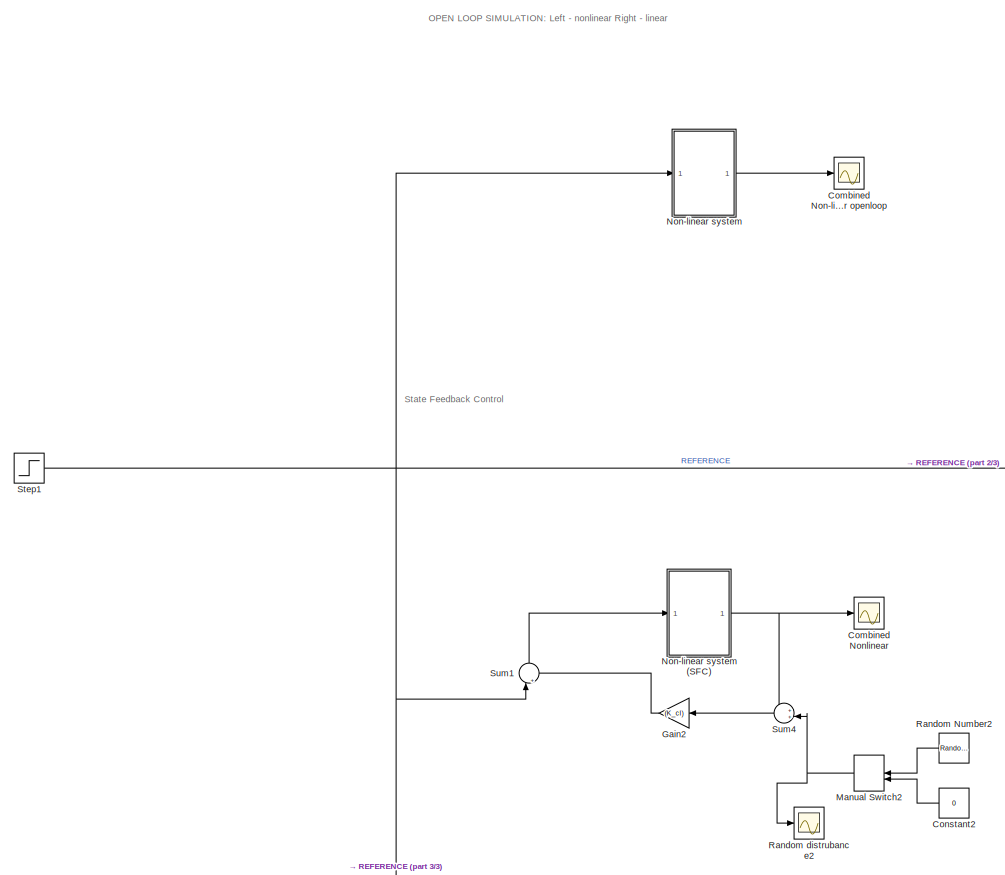
[diagram: root canvas - part 1/3, top left region]
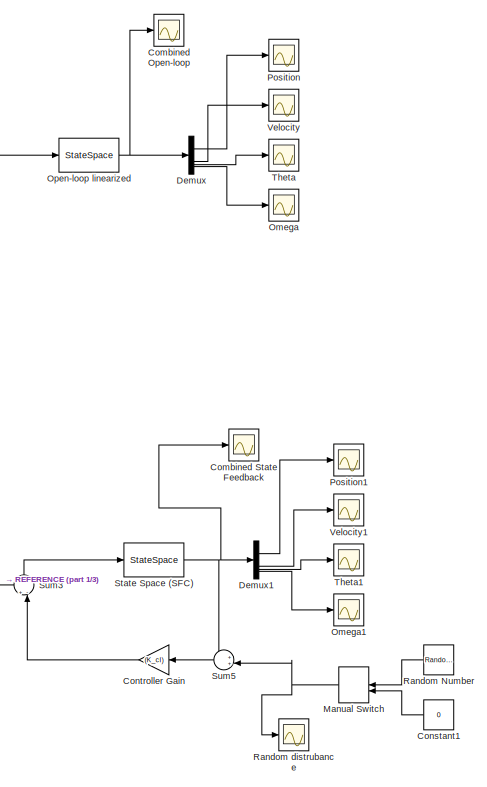
[diagram: root canvas - part 2/3, top right region]
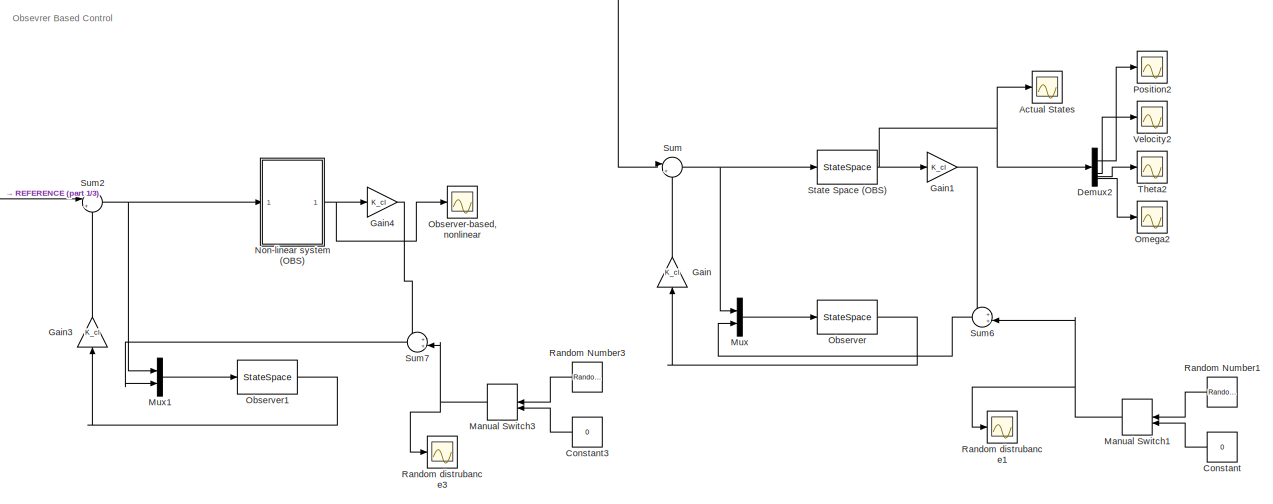
[diagram: root canvas - part 3/3, full width, bottom band]
MODEL slx_dab11f728cc3
KIND model
CONFIG AbsTol = auto
CONFIG EnableMultiTasking = off
CONFIG FixedStep = auto
CONFIG MaxStep = 0.2
CONFIG MinStep = auto
CONFIG RelTol = 1e-3
CONFIG SampleTimeConstraint = Unconstrained
CONFIG SolverName = ode45
CONFIG StartTime = 0.0
CONFIG StopTime = 5
BLOCK [Scope] Actual States
  Floating = off
  NumInputPorts = 1
  ScopeSpecificationString = Simulink.scopes.TimeScopeBlockCfg('CurrentConfiguration', extmgr.ConfigurationSet(extmgr.Configuration('Core','General UI',true),extmgr.Configuration('Core','Source UI',true),extmgr.Configuration('Sources','WiredSimulink',true,'DataLoggingVariableName','ScopeData2'),extmgr.Configuration('Visuals','Time Domain',true,'SerializedDisplays',{struct('MinYLimReal','-284.9145','MaxYLimReal','100.47909','Y...<+1461ch>
BLOCK [Scope] Combined Non-linear openloop
  Floating = off
  NumInputPorts = 1
  ScopeSpecificationString = Simulink.scopes.TimeScopeBlockCfg('CurrentConfiguration', extmgr.ConfigurationSet(extmgr.Configuration('Core','General UI',true),extmgr.Configuration('Core','Source UI',true),extmgr.Configuration('Sources','WiredSimulink',true,'DataLoggingVariableName','ScopeData13'),extmgr.Configuration('Visuals','Time Domain',true,'SerializedDisplays',{struct('MinYLimReal','-91785.47375','MaxYLimReal','13589.627...<+1476ch>
BLOCK [Scope] Combined Nonlinear
  Floating = off
  NumInputPorts = 1
  ScopeSpecificationString = Simulink.scopes.TimeScopeBlockCfg('CurrentConfiguration', extmgr.ConfigurationSet(extmgr.Configuration('Core','General UI',true),extmgr.Configuration('Core','Source UI',true),extmgr.Configuration('Sources','WiredSimulink',true,'DataLoggingVariableName','ScopeData8'),extmgr.Configuration('Visuals','Time Domain',true,'SerializedDisplays',{struct('MinYLimReal','-166.23006','MaxYLimReal','56.84395','Y...<+1457ch>
BLOCK [Scope] Combined Open-loop
  Floating = off
  NumInputPorts = 1
  ScopeSpecificationString = Simulink.scopes.TimeScopeBlockCfg('CurrentConfiguration', extmgr.ConfigurationSet(extmgr.Configuration('Core','General UI',true),extmgr.Configuration('Core','Source UI',true),extmgr.Configuration('Sources','WiredSimulink',true,'DataLoggingVariableName','ScopeData15'),extmgr.Configuration('Visuals','Time Domain',true,'SerializedDisplays',{struct('MinYLimReal','-1482712134012761315355942947245124727...<+1972ch>
BLOCK [Scope] Combined State Feedback
  Floating = off
  NumInputPorts = 1
  ScopeSpecificationString = Simulink.scopes.TimeScopeBlockCfg('CurrentConfiguration', extmgr.ConfigurationSet(extmgr.Configuration('Core','General UI',true),extmgr.Configuration('Core','Source UI',true),extmgr.Configuration('Sources','WiredSimulink',true,'DataLoggingVariableName','ScopeData16'),extmgr.Configuration('Visuals','Time Domain',true,'SerializedDisplays',{struct('MinYLimReal','-343.47586','MaxYLimReal','135.39238',...<+1599ch>
BLOCK [Constant] Constant
  Value = 0
BLOCK [Constant] Constant1
  Value = 0
BLOCK [Constant] Constant2
  Value = 0
BLOCK [Constant] Constant3
  Value = 0
BLOCK [Gain] Controller Gain
  Gain = (K_cl)
  Multiplication = Matrix(K*u)
BLOCK [Demux] Demux
BLOCK [Demux] Demux1
BLOCK [Demux] Demux2
BLOCK [Gain] Gain
  Gain = K_cl
  Multiplication = Matrix(K*u)
  NameLocation = right
BLOCK [Gain] Gain1
  Gain = K_cl
BLOCK [Gain] Gain2
  Gain = (K_cl)
  Multiplication = Matrix(K*u)
BLOCK [Gain] Gain3
  Gain = K_cl
  Multiplication = Matrix(K*u)
  NameLocation = right
BLOCK [Gain] Gain4
  Gain = K_cl
BLOCK [ManualSwitch] Manual Switch
BLOCK [ManualSwitch] Manual Switch1
BLOCK [ManualSwitch] Manual Switch2
  CurrentSetting = 0
BLOCK [ManualSwitch] Manual Switch3
BLOCK [Mux] Mux
  DisplayOption = bar
  Inputs = 2
BLOCK [Mux] Mux1
  DisplayOption = bar
  Inputs = 2
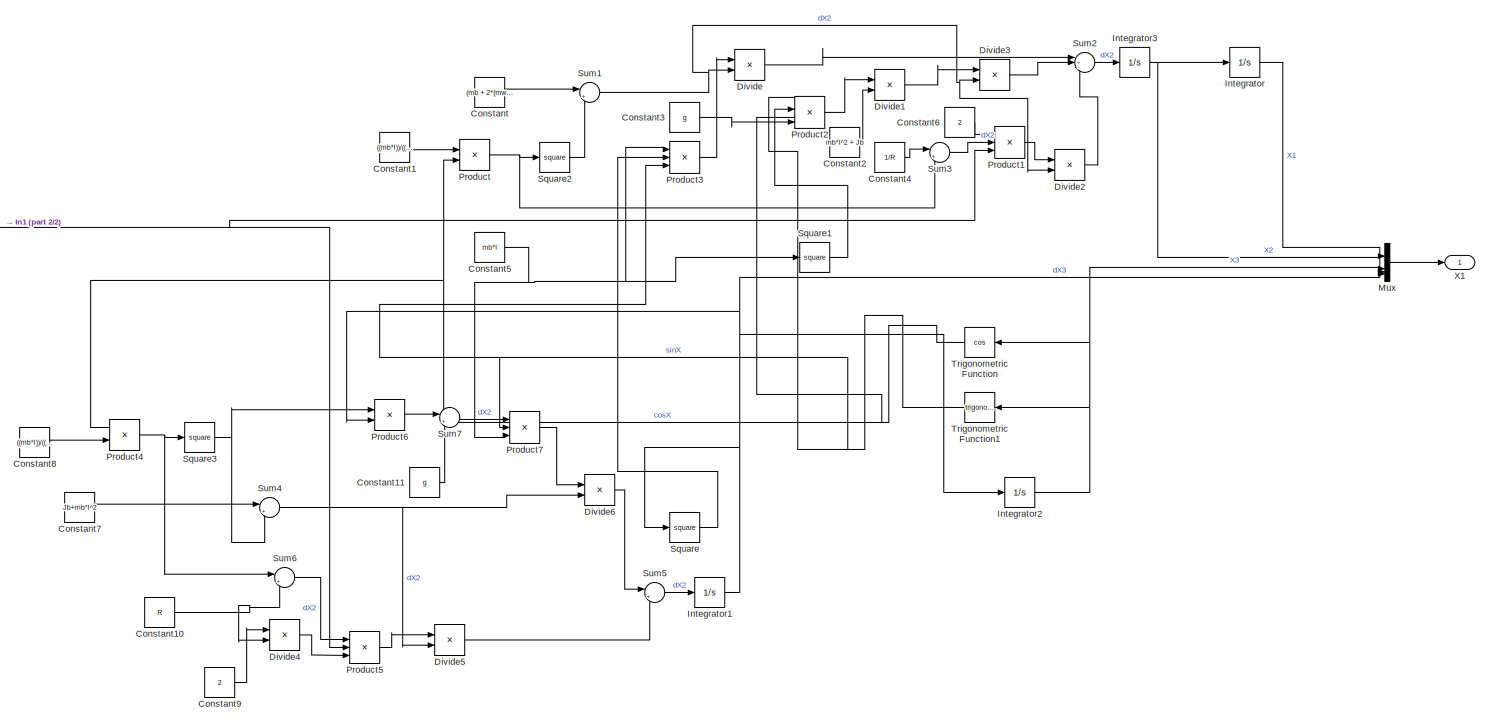
[diagram: Non-linear system - part 1/2, most of the canvas]
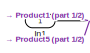
[diagram: Non-linear system - part 2/2, middle left region]
BLOCK [SubSystem] Non-linear system
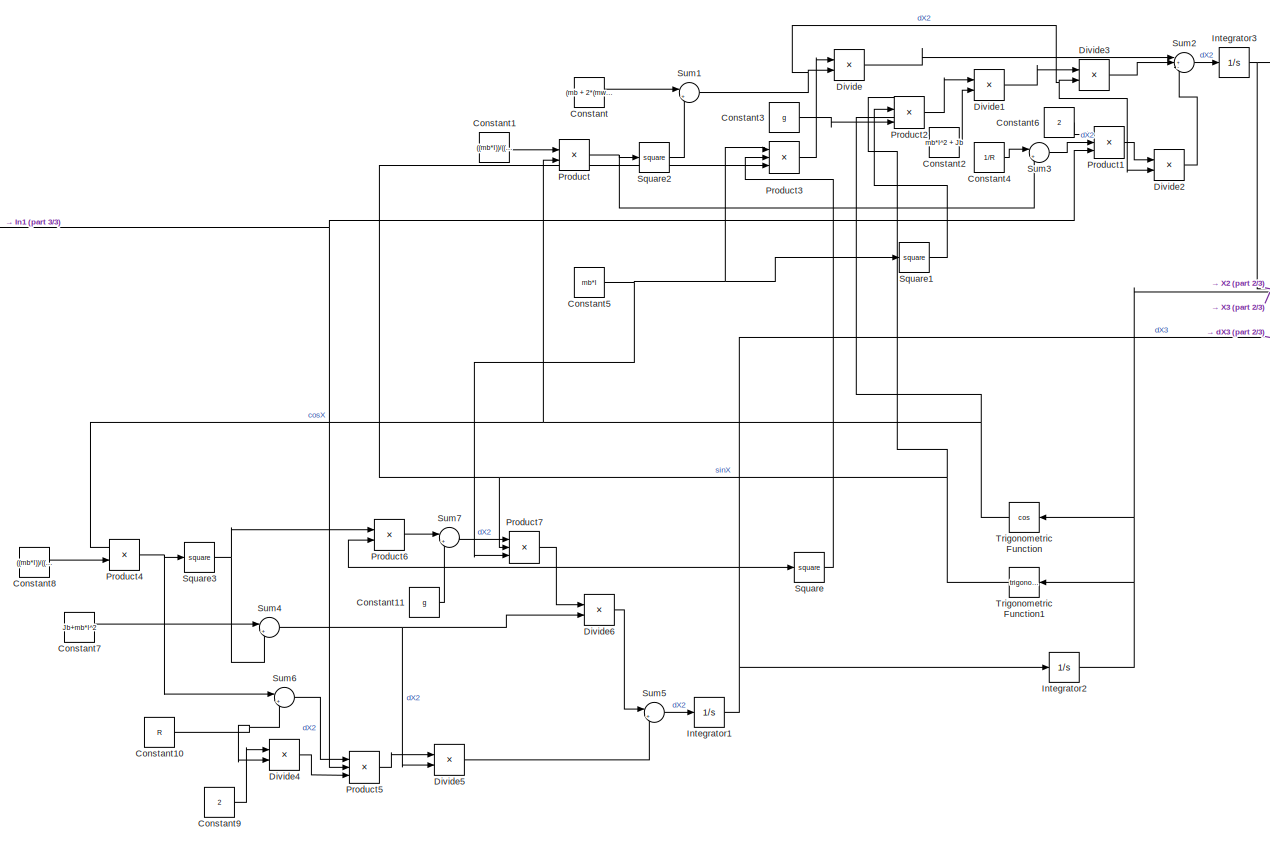
[diagram: Non-linear system (OBS) - part 1/3, center side, full height]
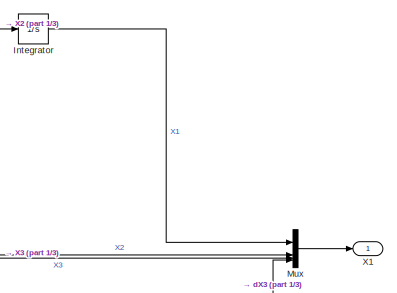
[diagram: Non-linear system (OBS) - part 2/3, top right region]
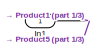
[diagram: Non-linear system (OBS) - part 3/3, top left region]
BLOCK [SubSystem] Non-linear system (OBS)
BLOCK [Constant] Non-linear system (OBS)/Constant
  Value = (mb + 2*(mw + Jw/R^2))
BLOCK [Constant] Non-linear system (OBS)/Constant1
  Value = ((mb*l))/((mb*l^2)+Jb)
BLOCK [Constant] Non-linear system (OBS)/Constant10
  Value = R
BLOCK [Constant] Non-linear system (OBS)/Constant11
  Value = g
BLOCK [Constant] Non-linear system (OBS)/Constant2
  Value = mb*l^2 + Jb
BLOCK [Constant] Non-linear system (OBS)/Constant3
  Value = g
BLOCK [Constant] Non-linear system (OBS)/Constant4
  Value = 1/R
BLOCK [Constant] Non-linear system (OBS)/Constant5
  Value = mb*l
BLOCK [Constant] Non-linear system (OBS)/Constant6
  Value = 2
BLOCK [Constant] Non-linear system (OBS)/Constant7
  Value = Jb+mb*l^2
BLOCK [Constant] Non-linear system (OBS)/Constant8
  Value = ((mb*l))/((mb+2*(mw+(Jb/R^2))))
BLOCK [Constant] Non-linear system (OBS)/Constant9
  Value = 2
BLOCK [Product] Non-linear system (OBS)/Divide
  Inputs = */
BLOCK [Product] Non-linear system (OBS)/Divide1
  Inputs = */
BLOCK [Product] Non-linear system (OBS)/Divide2
  Inputs = */
BLOCK [Product] Non-linear system (OBS)/Divide3
  Inputs = */
BLOCK [Product] Non-linear system (OBS)/Divide4
  Inputs = */
BLOCK [Product] Non-linear system (OBS)/Divide5
  Inputs = */
BLOCK [Product] Non-linear system (OBS)/Divide6
  Inputs = */
BLOCK [Inport] Non-linear system (OBS)/In1
BLOCK [Integrator] Non-linear system (OBS)/Integrator
  ContinuousStateAttributes = 'x1'
BLOCK [Integrator] Non-linear system (OBS)/Integrator1
BLOCK [Integrator] Non-linear system (OBS)/Integrator2
BLOCK [Integrator] Non-linear system (OBS)/Integrator3
BLOCK [Mux] Non-linear system (OBS)/Mux
  DisplayOption = bar
BLOCK [Product] Non-linear system (OBS)/Product
BLOCK [Product] Non-linear system (OBS)/Product1
  Inputs = 3
BLOCK [Product] Non-linear system (OBS)/Product2
  Inputs = 4
BLOCK [Product] Non-linear system (OBS)/Product3
  Inputs = 3
BLOCK [Product] Non-linear system (OBS)/Product4
BLOCK [Product] Non-linear system (OBS)/Product5
  Inputs = 3
BLOCK [Product] Non-linear system (OBS)/Product6
BLOCK [Product] Non-linear system (OBS)/Product7
  Inputs = 3
BLOCK [Math] Non-linear system (OBS)/Square
  Operator = square
BLOCK [Math] Non-linear system (OBS)/Square1
  Operator = square
BLOCK [Math] Non-linear system (OBS)/Square2
  Operator = square
BLOCK [Math] Non-linear system (OBS)/Square3
  Operator = square
BLOCK [Sum] Non-linear system (OBS)/Sum1
  Inputs = |+-
BLOCK [Sum] Non-linear system (OBS)/Sum2
  Inputs = |+-+
BLOCK [Sum] Non-linear system (OBS)/Sum3
  Inputs = |++
BLOCK [Sum] Non-linear system (OBS)/Sum4
  Inputs = |+-
BLOCK [Sum] Non-linear system (OBS)/Sum5
  Inputs = |+-
BLOCK [Sum] Non-linear system (OBS)/Sum6
  Inputs = |++
BLOCK [Sum] Non-linear system (OBS)/Sum7
  Inputs = |++
BLOCK [Trigonometry] Non-linear system (OBS)/Trigonometric Function
  Operator = cos
BLOCK [Trigonometry] Non-linear system (OBS)/Trigonometric Function1
BLOCK [Outport] Non-linear system (OBS)/X1
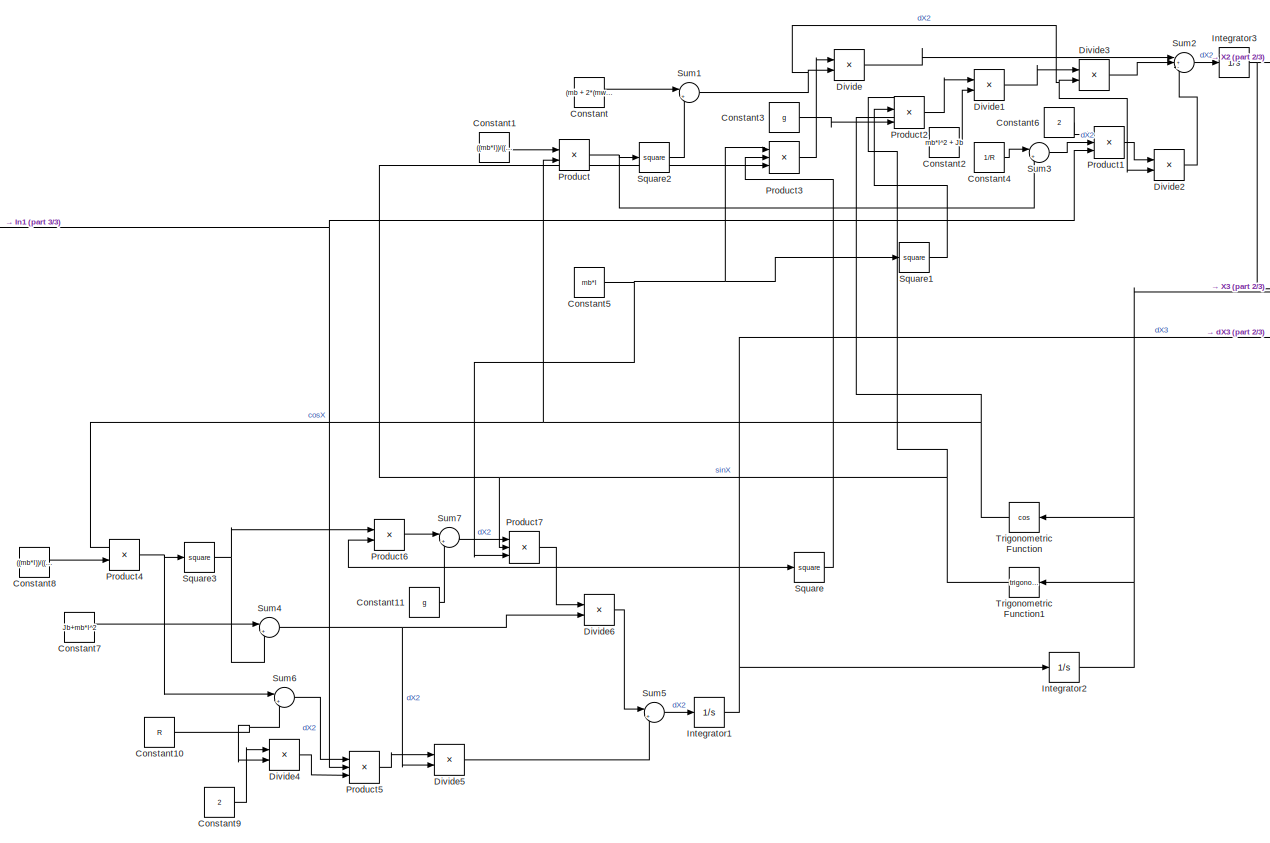
[diagram: Non-linear system (SFC) - part 1/3, center side, full height]
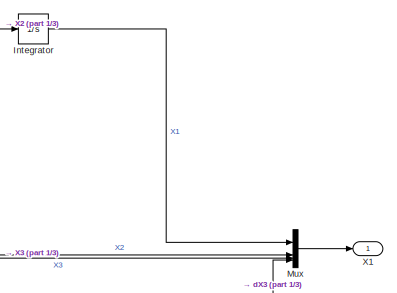
[diagram: Non-linear system (SFC) - part 2/3, top right region]
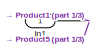
[diagram: Non-linear system (SFC) - part 3/3, top left region]
BLOCK [SubSystem] Non-linear system (SFC)
BLOCK [Constant] Non-linear system (SFC)/Constant
  Value = (mb + 2*(mw + Jw/R^2))
BLOCK [Constant] Non-linear system (SFC)/Constant1
  Value = ((mb*l))/((mb*l^2)+Jb)
BLOCK [Constant] Non-linear system (SFC)/Constant10
  Value = R
BLOCK [Constant] Non-linear system (SFC)/Constant11
  Value = g
BLOCK [Constant] Non-linear system (SFC)/Constant2
  Value = mb*l^2 + Jb
BLOCK [Constant] Non-linear system (SFC)/Constant3
  Value = g
BLOCK [Constant] Non-linear system (SFC)/Constant4
  Value = 1/R
BLOCK [Constant] Non-linear system (SFC)/Constant5
  Value = mb*l
BLOCK [Constant] Non-linear system (SFC)/Constant6
  Value = 2
BLOCK [Constant] Non-linear system (SFC)/Constant7
  Value = Jb+mb*l^2
BLOCK [Constant] Non-linear system (SFC)/Constant8
  Value = ((mb*l))/((mb+2*(mw+(Jb/R^2))))
BLOCK [Constant] Non-linear system (SFC)/Constant9
  Value = 2
BLOCK [Product] Non-linear system (SFC)/Divide
  Inputs = */
BLOCK [Product] Non-linear system (SFC)/Divide1
  Inputs = */
BLOCK [Product] Non-linear system (SFC)/Divide2
  Inputs = */
BLOCK [Product] Non-linear system (SFC)/Divide3
  Inputs = */
BLOCK [Product] Non-linear system (SFC)/Divide4
  Inputs = */
BLOCK [Product] Non-linear system (SFC)/Divide5
  Inputs = */
BLOCK [Product] Non-linear system (SFC)/Divide6
  Inputs = */
BLOCK [Inport] Non-linear system (SFC)/In1
BLOCK [Integrator] Non-linear system (SFC)/Integrator
  ContinuousStateAttributes = 'x1'
BLOCK [Integrator] Non-linear system (SFC)/Integrator1
BLOCK [Integrator] Non-linear system (SFC)/Integrator2
BLOCK [Integrator] Non-linear system (SFC)/Integrator3
BLOCK [Mux] Non-linear system (SFC)/Mux
  DisplayOption = bar
BLOCK [Product] Non-linear system (SFC)/Product
BLOCK [Product] Non-linear system (SFC)/Product1
  Inputs = 3
BLOCK [Product] Non-linear system (SFC)/Product2
  Inputs = 4
BLOCK [Product] Non-linear system (SFC)/Product3
  Inputs = 3
BLOCK [Product] Non-linear system (SFC)/Product4
BLOCK [Product] Non-linear system (SFC)/Product5
  Inputs = 3
BLOCK [Product] Non-linear system (SFC)/Product6
BLOCK [Product] Non-linear system (SFC)/Product7
  Inputs = 3
BLOCK [Math] Non-linear system (SFC)/Square
  Operator = square
BLOCK [Math] Non-linear system (SFC)/Square1
  Operator = square
BLOCK [Math] Non-linear system (SFC)/Square2
  Operator = square
BLOCK [Math] Non-linear system (SFC)/Square3
  Operator = square
BLOCK [Sum] Non-linear system (SFC)/Sum1
  Inputs = |+-
BLOCK [Sum] Non-linear system (SFC)/Sum2
  Inputs = |+-+
BLOCK [Sum] Non-linear system (SFC)/Sum3
  Inputs = |++
BLOCK [Sum] Non-linear system (SFC)/Sum4
  Inputs = |+-
BLOCK [Sum] Non-linear system (SFC)/Sum5
  Inputs = |+-
BLOCK [Sum] Non-linear system (SFC)/Sum6
  Inputs = |++
BLOCK [Sum] Non-linear system (SFC)/Sum7
  Inputs = |++
BLOCK [Trigonometry] Non-linear system (SFC)/Trigonometric Function
  Operator = cos
BLOCK [Trigonometry] Non-linear system (SFC)/Trigonometric Function1
BLOCK [Outport] Non-linear system (SFC)/X1
BLOCK [Constant] Non-linear system/Constant
  Value = (mb + 2*(mw + Jw/R^2))
BLOCK [Constant] Non-linear system/Constant1
  Value = ((mb*l))/((mb*l^2)+Jb)
BLOCK [Constant] Non-linear system/Constant10
  Value = R
BLOCK [Constant] Non-linear system/Constant11
  Value = g
BLOCK [Constant] Non-linear system/Constant2
  Value = mb*l^2 + Jb
BLOCK [Constant] Non-linear system/Constant3
  Value = g
BLOCK [Constant] Non-linear system/Constant4
  Value = 1/R
BLOCK [Constant] Non-linear system/Constant5
  Value = mb*l
BLOCK [Constant] Non-linear system/Constant6
  Value = 2
BLOCK [Constant] Non-linear system/Constant7
  Value = Jb+mb*l^2
BLOCK [Constant] Non-linear system/Constant8
  Value = ((mb*l))/((mb+2*(mw+(Jb/R^2))))
BLOCK [Constant] Non-linear system/Constant9
  Value = 2
BLOCK [Product] Non-linear system/Divide
  Inputs = */
BLOCK [Product] Non-linear system/Divide1
  Inputs = */
BLOCK [Product] Non-linear system/Divide2
  Inputs = */
BLOCK [Product] Non-linear system/Divide3
  Inputs = */
BLOCK [Product] Non-linear system/Divide4
  Inputs = */
BLOCK [Product] Non-linear system/Divide5
  Inputs = */
BLOCK [Product] Non-linear system/Divide6
  Inputs = */
BLOCK [Inport] Non-linear system/In1
BLOCK [Integrator] Non-linear system/Integrator
  ContinuousStateAttributes = 'x1'
BLOCK [Integrator] Non-linear system/Integrator1
BLOCK [Integrator] Non-linear system/Integrator2
BLOCK [Integrator] Non-linear system/Integrator3
BLOCK [Mux] Non-linear system/Mux
  DisplayOption = bar
BLOCK [Product] Non-linear system/Product
BLOCK [Product] Non-linear system/Product1
  Inputs = 3
BLOCK [Product] Non-linear system/Product2
  Inputs = 4
BLOCK [Product] Non-linear system/Product3
  Inputs = 3
BLOCK [Product] Non-linear system/Product4
BLOCK [Product] Non-linear system/Product5
  Inputs = 3
BLOCK [Product] Non-linear system/Product6
BLOCK [Product] Non-linear system/Product7
  Inputs = 3
BLOCK [Math] Non-linear system/Square
  Operator = square
BLOCK [Math] Non-linear system/Square1
  Operator = square
BLOCK [Math] Non-linear system/Square2
  Operator = square
BLOCK [Math] Non-linear system/Square3
  Operator = square
BLOCK [Sum] Non-linear system/Sum1
  Inputs = |+-
BLOCK [Sum] Non-linear system/Sum2
  Inputs = |+-+
BLOCK [Sum] Non-linear system/Sum3
  Inputs = |++
BLOCK [Sum] Non-linear system/Sum4
  Inputs = |+-
BLOCK [Sum] Non-linear system/Sum5
  Inputs = |+-
BLOCK [Sum] Non-linear system/Sum6
  Inputs = |++
BLOCK [Sum] Non-linear system/Sum7
  Inputs = |++
BLOCK [Trigonometry] Non-linear system/Trigonometric Function
  Operator = cos
BLOCK [Trigonometry] Non-linear system/Trigonometric Function1
BLOCK [Outport] Non-linear system/X1
BLOCK [StateSpace] Observer
  A = A_obs
  B = B_obs
  C = C_obs
  D = D_obs
  InitialCondition = 0
BLOCK [Scope] Observer-based, nonlinear
  Floating = off
  NumInputPorts = 1
  ScopeSpecificationString = Simulink.scopes.TimeScopeBlockCfg('CurrentConfiguration', extmgr.ConfigurationSet(extmgr.Configuration('Core','General UI',true),extmgr.Configuration('Core','Source UI',true),extmgr.Configuration('Sources','WiredSimulink',true,'DataLoggingVariableName','ScopeData14'),extmgr.Configuration('Visuals','Time Domain',true,'SerializedDisplays',{struct('MinYLimReal','-605.79941','MaxYLimReal','545.32948',...<+1464ch>
BLOCK [StateSpace] Observer1
  A = A_obs
  B = B_obs
  C = C_obs
  D = D_obs
  InitialCondition = 0
BLOCK [Scope] Omega
  Floating = off
  NumInputPorts = 1
  ScopeSpecificationString = Simulink.scopes.TimeScopeBlockCfg('CurrentConfiguration', extmgr.ConfigurationSet(extmgr.Configuration('Core','General UI',true),extmgr.Configuration('Core','Source UI',true),extmgr.Configuration('Sources','WiredSimulink',true,'DataLoggingVariableName','ScopeData3'),extmgr.Configuration('Visuals','Time Domain',true,'SerializedDisplays',{struct('MinYLimReal','-259479536101572795695104.00000','MaxYL...<+1546ch>
BLOCK [Scope] Omega1
  Floating = off
  NumInputPorts = 1
  ScopeSpecificationString = Simulink.scopes.TimeScopeBlockCfg('CurrentConfiguration', extmgr.ConfigurationSet(extmgr.Configuration('Core','General UI',true),extmgr.Configuration('Core','Source UI',true),extmgr.Configuration('Sources','WiredSimulink',true,'DataLoggingVariableName','ScopeData4'),extmgr.Configuration('Visuals','Time Domain',true,'SerializedDisplays',{struct('MinYLimReal','-343.12314','MaxYLimReal','135.3531','Y...<+1411ch>
BLOCK [Scope] Omega2
  Floating = off
  NumInputPorts = 1
  ScopeSpecificationString = Simulink.scopes.TimeScopeBlockCfg('CurrentConfiguration', extmgr.ConfigurationSet(extmgr.Configuration('Core','General UI',true),extmgr.Configuration('Core','Source UI',true),extmgr.Configuration('Sources','WiredSimulink',true,'DataLoggingVariableName','ScopeData9'),extmgr.Configuration('Visuals','Time Domain',true,'SerializedDisplays',{struct('MinYLimReal','-0.22966','MaxYLimReal','0.0567','YLabe...<+1400ch>
BLOCK [StateSpace] Open-loop linearized
  A = A_ol
  B = B_ol
  C = C_ol
  D = D_ol
  InitialCondition = 0
BLOCK [Scope] Position
  Floating = off
  NumInputPorts = 1
  ScopeSpecificationString = Simulink.scopes.TimeScopeBlockCfg('CurrentConfiguration', extmgr.ConfigurationSet(extmgr.Configuration('Core','General UI',true),extmgr.Configuration('Core','Source UI',true),extmgr.Configuration('Sources','WiredSimulink',true,'DataLoggingVariableName','ScopeData2'),extmgr.Configuration('Visuals','Time Domain',true,'SerializedDisplays',{struct('MinYLimReal','-7352763662360518852608.00000','MaxYLim...<+1530ch>
BLOCK [Scope] Position1
  Floating = off
  NumInputPorts = 1
  ScopeSpecificationString = Simulink.scopes.TimeScopeBlockCfg('CurrentConfiguration', extmgr.ConfigurationSet(extmgr.Configuration('Core','General UI',true),extmgr.Configuration('Core','Source UI',true),extmgr.Configuration('Sources','WiredSimulink',true,'DataLoggingVariableName','ScopeData5'),extmgr.Configuration('Visuals','Time Domain',true,'SerializedDisplays',{struct('MinYLimReal','-19.14452','MaxYLimReal','2.28979','YLa...<+1400ch>
BLOCK [Scope] Position2
  Floating = off
  NumInputPorts = 1
  ScopeSpecificationString = Simulink.scopes.TimeScopeBlockCfg('CurrentConfiguration', extmgr.ConfigurationSet(extmgr.Configuration('Core','General UI',true),extmgr.Configuration('Core','Source UI',true),extmgr.Configuration('Sources','WiredSimulink',true,'DataLoggingVariableName','ScopeData10'),extmgr.Configuration('Visuals','Time Domain',true,'SerializedDisplays',{struct('MinYLimReal','-11.41837','MaxYLimReal','1.38172','YL...<+1403ch>
BLOCK [RandomNumber] Random Number
  SampleTime = 1.5
BLOCK [RandomNumber] Random Number1
  SampleTime = 2
BLOCK [RandomNumber] Random Number2
  SampleTime = 1.5
BLOCK [RandomNumber] Random Number3
  SampleTime = 1.5
BLOCK [Scope] Random distrubance
  Floating = off
  NumInputPorts = 1
  ScopeSpecificationString = Simulink.scopes.TimeScopeBlockCfg('CurrentConfiguration', extmgr.ConfigurationSet(extmgr.Configuration('Core','General UI',true),extmgr.Configuration('Core','Source UI',true),extmgr.Configuration('Sources','WiredSimulink',true,'DataLoggingVariableName','ScopeData1'),extmgr.Configuration('Visuals','Time Domain',true,'SerializedDisplays',{struct('MinYLimReal','-0.06115','MaxYLimReal','1.30119','YLab...<+1401ch>
BLOCK [Scope] Random distrubance1
  Floating = off
  NumInputPorts = 1
  ScopeSpecificationString = Simulink.scopes.TimeScopeBlockCfg('CurrentConfiguration', extmgr.ConfigurationSet(extmgr.Configuration('Core','General UI',true),extmgr.Configuration('Core','Source UI',true),extmgr.Configuration('Sources','WiredSimulink',true,'DataLoggingVariableName','ScopeData4'),extmgr.Configuration('Visuals','Time Domain',true,'SerializedDisplays',{struct('MinYLimReal','-0.06115','MaxYLimReal','1.30119','YLab...<+1402ch>
BLOCK [Scope] Random distrubance2
  Floating = off
  NumInputPorts = 1
  ScopeSpecificationString = Simulink.scopes.TimeScopeBlockCfg('CurrentConfiguration', extmgr.ConfigurationSet(extmgr.Configuration('Core','General UI',true),extmgr.Configuration('Core','Source UI',true),extmgr.Configuration('Sources','WiredSimulink',true,'DataLoggingVariableName','ScopeData3'),extmgr.Configuration('Visuals','Time Domain',true,'SerializedDisplays',{struct('MinYLimReal','-1.00000','MaxYLimReal','1.00000','YLab...<+1402ch>
BLOCK [Scope] Random distrubance3
  Floating = off
  NumInputPorts = 1
  ScopeSpecificationString = Simulink.scopes.TimeScopeBlockCfg('CurrentConfiguration', extmgr.ConfigurationSet(extmgr.Configuration('Core','General UI',true),extmgr.Configuration('Core','Source UI',true),extmgr.Configuration('Sources','WiredSimulink',true,'DataLoggingVariableName','ScopeData5'),extmgr.Configuration('Visuals','Time Domain',true,'SerializedDisplays',{struct('MinYLimReal','-0.06115','MaxYLimReal','1.30119','YLab...<+1402ch>
BLOCK [StateSpace] State Space (OBS)
  A = A_cl
  B = B_ol
  C = C_ol
  D = D_ol
  InitialCondition = 0
BLOCK [StateSpace] State Space (SFC)
  A = A_ol
  B = B_ol
  C = C_ol
  D = D_ol
  InitialCondition = 0
  ParameterTunability = Unconstrained
BLOCK [Step] Step1
  SampleTime = 0
  Time = 0
BLOCK [Sum] Sum
  Inputs = |++
BLOCK [Sum] Sum1
  Inputs = |+-
  NameLocation = right
BLOCK [Sum] Sum2
  Inputs = |++
BLOCK [Sum] Sum3
  Inputs = +-|
  NameLocation = right
BLOCK [Sum] Sum4
  Inputs = ++|
  NameLocation = top
BLOCK [Sum] Sum5
  Inputs = ++|
  NameLocation = top
BLOCK [Sum] Sum6
  Inputs = ++|
  NameLocation = top
BLOCK [Sum] Sum7
  Inputs = ++|
  NameLocation = top
BLOCK [Scope] Theta
  Floating = off
  NumInputPorts = 1
  ScopeSpecificationString = Simulink.scopes.TimeScopeBlockCfg('CurrentConfiguration', extmgr.ConfigurationSet(extmgr.Configuration('Core','General UI',true),extmgr.Configuration('Core','Source UI',true),extmgr.Configuration('Sources','WiredSimulink',true),extmgr.Configuration('Visuals','Time Domain',true,'SerializedDisplays',{struct('MinYLimReal','-49749500572966238289920.00000','MaxYLimReal','5527722285885136306176.00000','...<+1499ch>
BLOCK [Scope] Theta1
  Floating = off
  NumInputPorts = 1
  ScopeSpecificationString = Simulink.scopes.TimeScopeBlockCfg('CurrentConfiguration', extmgr.ConfigurationSet(extmgr.Configuration('Core','General UI',true),extmgr.Configuration('Core','Source UI',true),extmgr.Configuration('Sources','WiredSimulink',true,'DataLoggingVariableName','ScopeData6'),extmgr.Configuration('Visuals','Time Domain',true,'SerializedDisplays',{struct('MinYLimReal','-15.45561','MaxYLimReal','5.06902','YLa...<+1402ch>
BLOCK [Scope] Theta2
  Floating = off
  NumInputPorts = 1
  ScopeSpecificationString = Simulink.scopes.TimeScopeBlockCfg('CurrentConfiguration', extmgr.ConfigurationSet(extmgr.Configuration('Core','General UI',true),extmgr.Configuration('Core','Source UI',true),extmgr.Configuration('Sources','WiredSimulink',true,'DataLoggingVariableName','ScopeData11'),extmgr.Configuration('Visuals','Time Domain',true,'SerializedDisplays',{struct('MinYLimReal','-8.66671','MaxYLimReal','2.43779','YLa...<+1401ch>
BLOCK [Scope] Velocity
  Floating = off
  NumInputPorts = 1
  ScopeSpecificationString = Simulink.scopes.TimeScopeBlockCfg('CurrentConfiguration', extmgr.ConfigurationSet(extmgr.Configuration('Core','General UI',true),extmgr.Configuration('Core','Source UI',true),extmgr.Configuration('Sources','WiredSimulink',true,'DataLoggingVariableName','ScopeData1'),extmgr.Configuration('Visuals','Time Domain',true,'SerializedDisplays',{struct('MinYLimReal','-40121363556300971048960.00000','MaxYLi...<+1538ch>
BLOCK [Scope] Velocity1
  Floating = off
  NumInputPorts = 1
  ScopeSpecificationString = Simulink.scopes.TimeScopeBlockCfg('CurrentConfiguration', extmgr.ConfigurationSet(extmgr.Configuration('Core','General UI',true),extmgr.Configuration('Core','Source UI',true),extmgr.Configuration('Sources','WiredSimulink',true,'DataLoggingVariableName','ScopeData7'),extmgr.Configuration('Visuals','Time Domain',true,'SerializedDisplays',{struct('MinYLimReal','-30.16128','MaxYLimReal','8.71636','YLa...<+1404ch>
BLOCK [Scope] Velocity2
  Floating = off
  NumInputPorts = 1
  ScopeSpecificationString = Simulink.scopes.TimeScopeBlockCfg('CurrentConfiguration', extmgr.ConfigurationSet(extmgr.Configuration('Core','General UI',true),extmgr.Configuration('Core','Source UI',true),extmgr.Configuration('Sources','WiredSimulink',true,'DataLoggingVariableName','ScopeData12'),extmgr.Configuration('Visuals','Time Domain',true,'SerializedDisplays',{struct('MinYLimReal','-0.03881','MaxYLimReal','0.08106','YLa...<+1368ch>
ANNOTATION (root): OPEN LOOP SIMULATION: Left - nonlinear Right - linear
ANNOTATION (root): Obsevrer Based Control
ANNOTATION (root): State Feedback Control
LINE Constant1:1 -> Manual Switch:2
LINE Constant2:1 -> Manual Switch2:2
LINE Constant3:1 -> Manual Switch3:2
LINE Constant:1 -> Manual Switch1:2
LINE Controller Gain:1 -> Sum3:2
LINE Demux1:1 -> Position1:1
LINE Demux1:2 -> Velocity1:1
LINE Demux1:3 -> Theta1:1
LINE Demux1:4 -> Omega1:1
LINE Demux2:1 -> Position2:1
LINE Demux2:2 -> Velocity2:1
LINE Demux2:3 -> Theta2:1
LINE Demux2:4 -> Omega2:1
LINE Demux:1 -> Position:1
LINE Demux:2 -> Velocity:1
LINE Demux:3 -> Theta:1
LINE Demux:4 -> Omega:1
LINE Gain1:1 -> Sum6:1
LINE Gain2:1 -> Sum1:2
LINE Gain3:1 -> Sum2:2
LINE Gain4:1 -> Sum7:1
LINE Gain:1 -> Sum:2
NET Manual Switch1:1 -> Random distrubance1:1, Sum6:2
NET Manual Switch2:1 -> Random distrubance2:1, Sum4:2
NET Manual Switch3:1 -> Random distrubance3:1, Sum7:2
NET Manual Switch:1 -> Random distrubance:1, Sum5:2
LINE Mux1:1 -> Observer1:1
LINE Mux:1 -> Observer:1
NET Non-linear system (OBS)/Constant10:1 -> Non-linear system (OBS)/Divide4:2, Non-linear system (OBS)/Sum6:2
LINE Non-linear system (OBS)/Constant11:1 -> Non-linear system (OBS)/Sum7:2
LINE Non-linear system (OBS)/Constant1:1 -> Non-linear system (OBS)/Product:1
LINE Non-linear system (OBS)/Constant2:1 -> Non-linear system (OBS)/Divide1:2
LINE Non-linear system (OBS)/Constant3:1 -> Non-linear system (OBS)/Product2:4
LINE Non-linear system (OBS)/Constant4:1 -> Non-linear system (OBS)/Sum3:1
NET Non-linear system (OBS)/Constant5:1 -> Non-linear system (OBS)/Product3:1, Non-linear system (OBS)/Product7:3, Non-linear system (OBS)/Square1:1
LINE Non-linear system (OBS)/Constant6:1 -> Non-linear system (OBS)/Product1:1
LINE Non-linear system (OBS)/Constant7:1 -> Non-linear system (OBS)/Sum4:1
LINE Non-linear system (OBS)/Constant8:1 -> Non-linear system (OBS)/Product4:2
LINE Non-linear system (OBS)/Constant9:1 -> Non-linear system (OBS)/Divide4:1
LINE Non-linear system (OBS)/Constant:1 -> Non-linear system (OBS)/Sum1:1
LINE Non-linear system (OBS)/Divide1:1 -> Non-linear system (OBS)/Divide3:1
LINE Non-linear system (OBS)/Divide2:1 -> Non-linear system (OBS)/Sum2:3
LINE Non-linear system (OBS)/Divide3:1 -> Non-linear system (OBS)/Sum2:2
LINE Non-linear system (OBS)/Divide4:1 -> Non-linear system (OBS)/Product5:3
LINE Non-linear system (OBS)/Divide5:1 -> Non-linear system (OBS)/Sum5:2
LINE Non-linear system (OBS)/Divide6:1 -> Non-linear system (OBS)/Sum5:1
LINE Non-linear system (OBS)/Divide:1 -> Non-linear system (OBS)/Sum2:1
NET Non-linear system (OBS)/In1:1 -> Non-linear system (OBS)/Product1:3, Non-linear system (OBS)/Product5:2
NET Non-linear system (OBS)/Integrator1:1 -> Non-linear system (OBS)/Integrator2:1, Non-linear system (OBS)/Mux:4, Non-linear system (OBS)/Product6:2, Non-linear system (OBS)/Square:1
NET Non-linear system (OBS)/Integrator2:1 -> Non-linear system (OBS)/Mux:3, Non-linear system (OBS)/Trigonometric Function1:1, Non-linear system (OBS)/Trigonometric Function:1
NET Non-linear system (OBS)/Integrator3:1 -> Non-linear system (OBS)/Integrator:1, Non-linear system (OBS)/Mux:2
LINE Non-linear system (OBS)/Integrator:1 -> Non-linear system (OBS)/Mux:1
LINE Non-linear system (OBS)/Mux:1 -> Non-linear system (OBS)/X1:1
LINE Non-linear system (OBS)/Product1:1 -> Non-linear system (OBS)/Divide2:1
LINE Non-linear system (OBS)/Product2:1 -> Non-linear system (OBS)/Divide1:1
LINE Non-linear system (OBS)/Product3:1 -> Non-linear system (OBS)/Divide:1
NET Non-linear system (OBS)/Product4:1 -> Non-linear system (OBS)/Square3:1, Non-linear system (OBS)/Sum6:1
LINE Non-linear system (OBS)/Product5:1 -> Non-linear system (OBS)/Divide5:1
LINE Non-linear system (OBS)/Product6:1 -> Non-linear system (OBS)/Sum7:1
LINE Non-linear system (OBS)/Product7:1 -> Non-linear system (OBS)/Divide6:1
NET Non-linear system (OBS)/Product:1 -> Non-linear system (OBS)/Square2:1, Non-linear system (OBS)/Sum3:2
LINE Non-linear system (OBS)/Square1:1 -> Non-linear system (OBS)/Product2:2
LINE Non-linear system (OBS)/Square2:1 -> Non-linear system (OBS)/Sum1:2
NET Non-linear system (OBS)/Square3:1 -> Non-linear system (OBS)/Product6:1, Non-linear system (OBS)/Sum4:2
LINE Non-linear system (OBS)/Square:1 -> Non-linear system (OBS)/Product3:2
NET Non-linear system (OBS)/Sum1:1 -> Non-linear system (OBS)/Divide2:2, Non-linear system (OBS)/Divide3:2, Non-linear system (OBS)/Divide:2
LINE Non-linear system (OBS)/Sum2:1 -> Non-linear system (OBS)/Integrator3:1
LINE Non-linear system (OBS)/Sum3:1 -> Non-linear system (OBS)/Product1:2
NET Non-linear system (OBS)/Sum4:1 -> Non-linear system (OBS)/Divide5:2, Non-linear system (OBS)/Divide6:2
LINE Non-linear system (OBS)/Sum5:1 -> Non-linear system (OBS)/Integrator1:1
LINE Non-linear system (OBS)/Sum6:1 -> Non-linear system (OBS)/Product5:1
LINE Non-linear system (OBS)/Sum7:1 -> Non-linear system (OBS)/Product7:1
NET Non-linear system (OBS)/Trigonometric Function1:1 -> Non-linear system (OBS)/Product2:1, Non-linear system (OBS)/Product3:3, Non-linear system (OBS)/Product7:2
NET Non-linear system (OBS)/Trigonometric Function:1 -> Non-linear system (OBS)/Product2:3, Non-linear system (OBS)/Product4:1, Non-linear system (OBS)/Product:2
NET Non-linear system (OBS):1 -> Gain4:1, Observer-based, nonlinear:1
NET Non-linear system (SFC)/Constant10:1 -> Non-linear system (SFC)/Divide4:2, Non-linear system (SFC)/Sum6:2
LINE Non-linear system (SFC)/Constant11:1 -> Non-linear system (SFC)/Sum7:2
LINE Non-linear system (SFC)/Constant1:1 -> Non-linear system (SFC)/Product:1
LINE Non-linear system (SFC)/Constant2:1 -> Non-linear system (SFC)/Divide1:2
LINE Non-linear system (SFC)/Constant3:1 -> Non-linear system (SFC)/Product2:4
LINE Non-linear system (SFC)/Constant4:1 -> Non-linear system (SFC)/Sum3:1
NET Non-linear system (SFC)/Constant5:1 -> Non-linear system (SFC)/Product3:1, Non-linear system (SFC)/Product7:3, Non-linear system (SFC)/Square1:1
LINE Non-linear system (SFC)/Constant6:1 -> Non-linear system (SFC)/Product1:1
LINE Non-linear system (SFC)/Constant7:1 -> Non-linear system (SFC)/Sum4:1
LINE Non-linear system (SFC)/Constant8:1 -> Non-linear system (SFC)/Product4:2
LINE Non-linear system (SFC)/Constant9:1 -> Non-linear system (SFC)/Divide4:1
LINE Non-linear system (SFC)/Constant:1 -> Non-linear system (SFC)/Sum1:1
LINE Non-linear system (SFC)/Divide1:1 -> Non-linear system (SFC)/Divide3:1
LINE Non-linear system (SFC)/Divide2:1 -> Non-linear system (SFC)/Sum2:3
LINE Non-linear system (SFC)/Divide3:1 -> Non-linear system (SFC)/Sum2:2
LINE Non-linear system (SFC)/Divide4:1 -> Non-linear system (SFC)/Product5:3
LINE Non-linear system (SFC)/Divide5:1 -> Non-linear system (SFC)/Sum5:2
LINE Non-linear system (SFC)/Divide6:1 -> Non-linear system (SFC)/Sum5:1
LINE Non-linear system (SFC)/Divide:1 -> Non-linear system (SFC)/Sum2:1
NET Non-linear system (SFC)/In1:1 -> Non-linear system (SFC)/Product1:3, Non-linear system (SFC)/Product5:2
NET Non-linear system (SFC)/Integrator1:1 -> Non-linear system (SFC)/Integrator2:1, Non-linear system (SFC)/Mux:4, Non-linear system (SFC)/Product6:2, Non-linear system (SFC)/Square:1
NET Non-linear system (SFC)/Integrator2:1 -> Non-linear system (SFC)/Mux:3, Non-linear system (SFC)/Trigonometric Function1:1, Non-linear system (SFC)/Trigonometric Function:1
NET Non-linear system (SFC)/Integrator3:1 -> Non-linear system (SFC)/Integrator:1, Non-linear system (SFC)/Mux:2
LINE Non-linear system (SFC)/Integrator:1 -> Non-linear system (SFC)/Mux:1
LINE Non-linear system (SFC)/Mux:1 -> Non-linear system (SFC)/X1:1
LINE Non-linear system (SFC)/Product1:1 -> Non-linear system (SFC)/Divide2:1
LINE Non-linear system (SFC)/Product2:1 -> Non-linear system (SFC)/Divide1:1
LINE Non-linear system (SFC)/Product3:1 -> Non-linear system (SFC)/Divide:1
NET Non-linear system (SFC)/Product4:1 -> Non-linear system (SFC)/Square3:1, Non-linear system (SFC)/Sum6:1
LINE Non-linear system (SFC)/Product5:1 -> Non-linear system (SFC)/Divide5:1
LINE Non-linear system (SFC)/Product6:1 -> Non-linear system (SFC)/Sum7:1
LINE Non-linear system (SFC)/Product7:1 -> Non-linear system (SFC)/Divide6:1
NET Non-linear system (SFC)/Product:1 -> Non-linear system (SFC)/Square2:1, Non-linear system (SFC)/Sum3:2
LINE Non-linear system (SFC)/Square1:1 -> Non-linear system (SFC)/Product2:2
LINE Non-linear system (SFC)/Square2:1 -> Non-linear system (SFC)/Sum1:2
NET Non-linear system (SFC)/Square3:1 -> Non-linear system (SFC)/Product6:1, Non-linear system (SFC)/Sum4:2
LINE Non-linear system (SFC)/Square:1 -> Non-linear system (SFC)/Product3:2
NET Non-linear system (SFC)/Sum1:1 -> Non-linear system (SFC)/Divide2:2, Non-linear system (SFC)/Divide3:2, Non-linear system (SFC)/Divide:2
LINE Non-linear system (SFC)/Sum2:1 -> Non-linear system (SFC)/Integrator3:1
LINE Non-linear system (SFC)/Sum3:1 -> Non-linear system (SFC)/Product1:2
NET Non-linear system (SFC)/Sum4:1 -> Non-linear system (SFC)/Divide5:2, Non-linear system (SFC)/Divide6:2
LINE Non-linear system (SFC)/Sum5:1 -> Non-linear system (SFC)/Integrator1:1
LINE Non-linear system (SFC)/Sum6:1 -> Non-linear system (SFC)/Product5:1
LINE Non-linear system (SFC)/Sum7:1 -> Non-linear system (SFC)/Product7:1
NET Non-linear system (SFC)/Trigonometric Function1:1 -> Non-linear system (SFC)/Product2:1, Non-linear system (SFC)/Product3:3, Non-linear system (SFC)/Product7:2
NET Non-linear system (SFC)/Trigonometric Function:1 -> Non-linear system (SFC)/Product2:3, Non-linear system (SFC)/Product4:1, Non-linear system (SFC)/Product:2
NET Non-linear system (SFC):1 -> Combined Nonlinear:1, Sum4:1
NET Non-linear system/Constant10:1 -> Non-linear system/Divide4:2, Non-linear system/Sum6:2
LINE Non-linear system/Constant11:1 -> Non-linear system/Sum7:2
LINE Non-linear system/Constant1:1 -> Non-linear system/Product:1
LINE Non-linear system/Constant2:1 -> Non-linear system/Divide1:2
LINE Non-linear system/Constant3:1 -> Non-linear system/Product2:4
LINE Non-linear system/Constant4:1 -> Non-linear system/Sum3:1
NET Non-linear system/Constant5:1 -> Non-linear system/Product3:1, Non-linear system/Product7:3, Non-linear system/Square1:1
LINE Non-linear system/Constant6:1 -> Non-linear system/Product1:1
LINE Non-linear system/Constant7:1 -> Non-linear system/Sum4:1
LINE Non-linear system/Constant8:1 -> Non-linear system/Product4:2
LINE Non-linear system/Constant9:1 -> Non-linear system/Divide4:1
LINE Non-linear system/Constant:1 -> Non-linear system/Sum1:1
LINE Non-linear system/Divide1:1 -> Non-linear system/Divide3:1
LINE Non-linear system/Divide2:1 -> Non-linear system/Sum2:3
LINE Non-linear system/Divide3:1 -> Non-linear system/Sum2:2
LINE Non-linear system/Divide4:1 -> Non-linear system/Product5:3
LINE Non-linear system/Divide5:1 -> Non-linear system/Sum5:2
LINE Non-linear system/Divide6:1 -> Non-linear system/Sum5:1
LINE Non-linear system/Divide:1 -> Non-linear system/Sum2:1
NET Non-linear system/In1:1 -> Non-linear system/Product1:3, Non-linear system/Product5:2
NET Non-linear system/Integrator1:1 -> Non-linear system/Integrator2:1, Non-linear system/Mux:4, Non-linear system/Product6:2, Non-linear system/Square:1
NET Non-linear system/Integrator2:1 -> Non-linear system/Mux:3, Non-linear system/Trigonometric Function1:1, Non-linear system/Trigonometric Function:1
NET Non-linear system/Integrator3:1 -> Non-linear system/Integrator:1, Non-linear system/Mux:2
LINE Non-linear system/Integrator:1 -> Non-linear system/Mux:1
LINE Non-linear system/Mux:1 -> Non-linear system/X1:1
LINE Non-linear system/Product1:1 -> Non-linear system/Divide2:1
LINE Non-linear system/Product2:1 -> Non-linear system/Divide1:1
LINE Non-linear system/Product3:1 -> Non-linear system/Divide:1
NET Non-linear system/Product4:1 -> Non-linear system/Square3:1, Non-linear system/Sum6:1
LINE Non-linear system/Product5:1 -> Non-linear system/Divide5:1
LINE Non-linear system/Product6:1 -> Non-linear system/Sum7:1
LINE Non-linear system/Product7:1 -> Non-linear system/Divide6:1
NET Non-linear system/Product:1 -> Non-linear system/Square2:1, Non-linear system/Sum3:2
LINE Non-linear system/Square1:1 -> Non-linear system/Product2:2
LINE Non-linear system/Square2:1 -> Non-linear system/Sum1:2
NET Non-linear system/Square3:1 -> Non-linear system/Product6:1, Non-linear system/Sum4:2
LINE Non-linear system/Square:1 -> Non-linear system/Product3:2
NET Non-linear system/Sum1:1 -> Non-linear system/Divide2:2, Non-linear system/Divide3:2, Non-linear system/Divide:2
LINE Non-linear system/Sum2:1 -> Non-linear system/Integrator3:1
LINE Non-linear system/Sum3:1 -> Non-linear system/Product1:2
NET Non-linear system/Sum4:1 -> Non-linear system/Divide5:2, Non-linear system/Divide6:2
LINE Non-linear system/Sum5:1 -> Non-linear system/Integrator1:1
LINE Non-linear system/Sum6:1 -> Non-linear system/Product5:1
LINE Non-linear system/Sum7:1 -> Non-linear system/Product7:1
NET Non-linear system/Trigonometric Function1:1 -> Non-linear system/Product2:1, Non-linear system/Product3:3, Non-linear system/Product7:2
NET Non-linear system/Trigonometric Function:1 -> Non-linear system/Product2:3, Non-linear system/Product4:1, Non-linear system/Product:2
LINE Non-linear system:1 -> Combined Non-linear openloop:1
LINE Observer1:1 -> Gain3:1
LINE Observer:1 -> Gain:1
NET Open-loop linearized:1 -> Combined Open-loop:1, Demux:1
LINE Random Number1:1 -> Manual Switch1:1
LINE Random Number2:1 -> Manual Switch2:1
LINE Random Number3:1 -> Manual Switch3:1
LINE Random Number:1 -> Manual Switch:1
NET State Space (OBS):1 -> Actual States:1, Demux2:1, Gain1:1
NET State Space (SFC):1 -> Combined State Feedback:1, Demux1:1, Sum5:1
NET Step1:1 -> Non-linear system:1, Open-loop linearized:1, Sum1:1, Sum2:1, Sum3:1, Sum:1
LINE Sum1:1 -> Non-linear system (SFC):1
NET Sum2:1 -> Mux1:1, Non-linear system (OBS):1
LINE Sum3:1 -> State Space (SFC):1
LINE Sum4:1 -> Gain2:1
LINE Sum5:1 -> Controller Gain:1
LINE Sum6:1 -> Mux:2
LINE Sum7:1 -> Mux1:2
NET Sum:1 -> Mux:1, State Space (OBS):1
note: NET lines group one-source signal fan-out (src -> all destinations, sorted); 1:1 wires keep LINE
